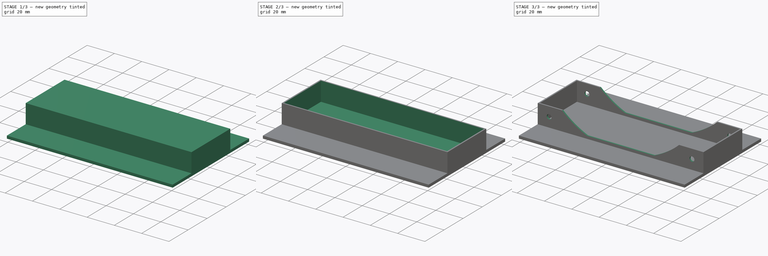
[diagram: build sequence overview — one tinted view per stage of 3, left to right]
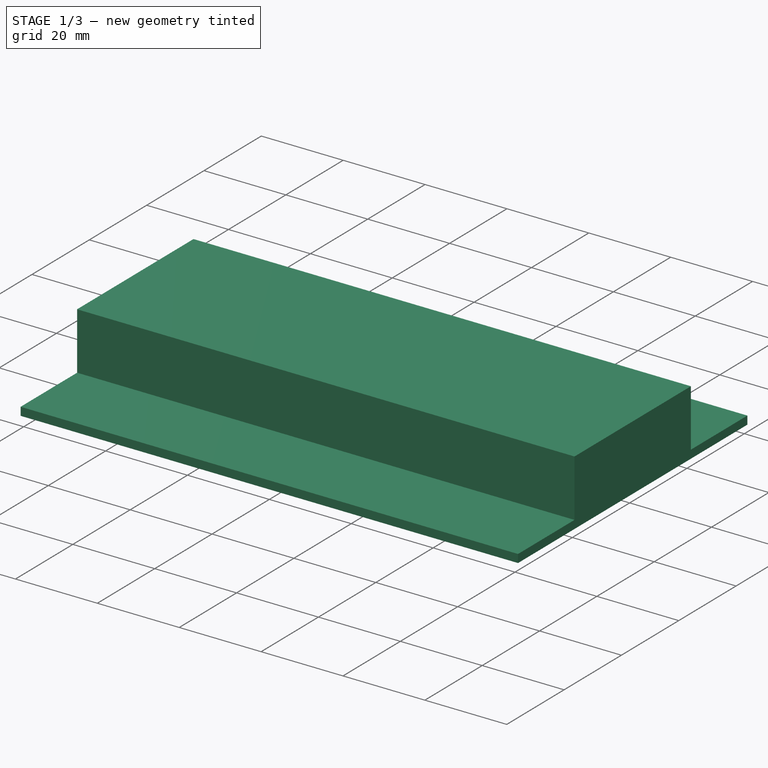
[diagram: stage 1 of 3 — iso view after this stage's code; geometry added in this stage tinted green]
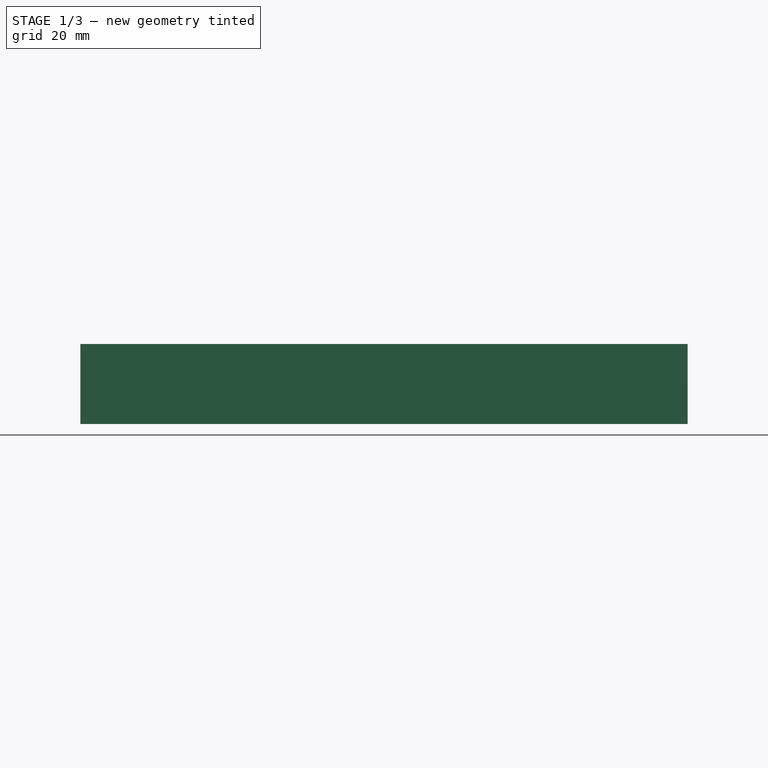
[diagram: stage 1 of 3 — front view after this stage's code; geometry added in this stage tinted green]
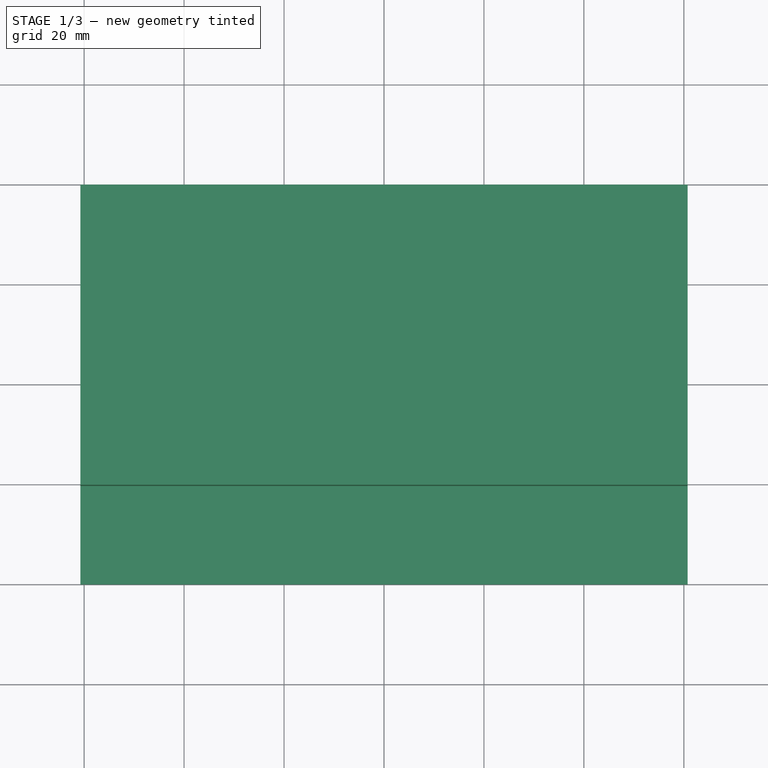
[diagram: stage 1 of 3 — top view after this stage's code; geometry added in this stage tinted green]
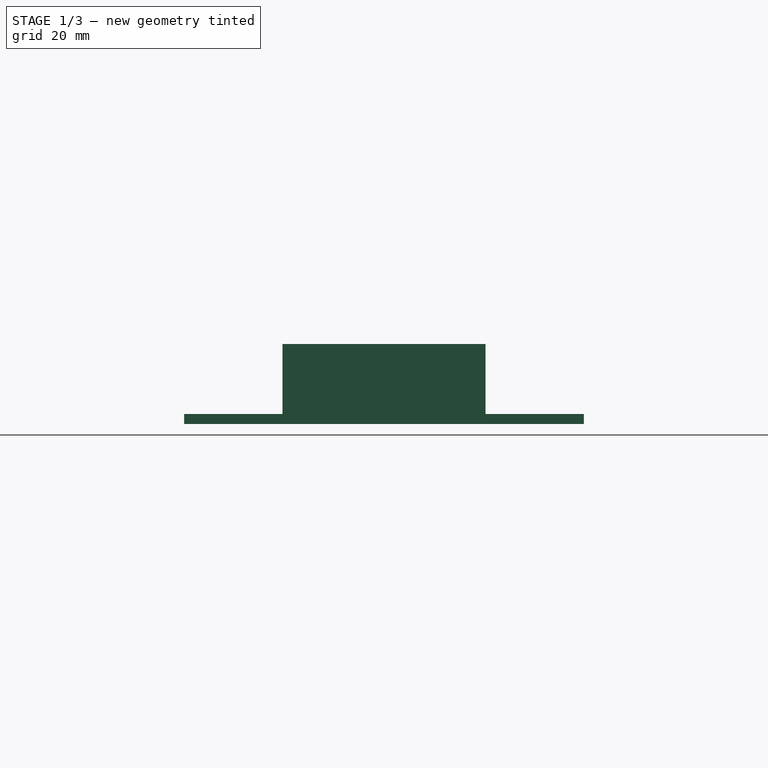
[diagram: stage 1 of 3 — right view after this stage's code; geometry added in this stage tinted green]
FCSTD DOCUMENT  (FreeCAD 0.21R33771 (Git))
Label: case-fan-desk-fan-base
License: All rights reserved
LicenseURL: https://en.wikipedia.org/wiki/All_rights_reserved
objects: Sketcher::SketchObject×5, PartDesign::Plane×4, PartDesign::Pocket×3, PartDesign::Pad×2, PartDesign::Body×1
note: 20 computed .brp shape members not serialized (recipe doc carries the construction recipe); baked Part::Feature solids carry a one-line shape summary decoded from their .brp

FEATURE [PartDesign::Plane] DatumPlane  label="Bottom Face"
  Length = 141.218
  MapMode = 5
  ResizeMode = 0
  Support = -> [XY_Plane]
  Width = 99.718
FEATURE [PartDesign::Plane] DatumPlane001  label="Support Top Face"
  AttachmentOffset = pos=(0,0,2) rot=(0,0,1;0rad)
  Length = 141.218
  MapMode = 5
  Placement = pos=(0,0,2) rot=(0,0,1;0rad)
  ResizeMode = 0
  Support = -> [DatumPlane]
  Width = 99.718
FEATURE [PartDesign::Plane] DatumPlane002  label="Fan Mount Top"
  AttachmentOffset = pos=(0,0,14) rot=(0,0,1;0rad)
  Length = 141.218
  MapMode = 5
  Placement = pos=(0,0,16) rot=(0,0,1;0rad)
  ResizeMode = 0
  Support = -> [DatumPlane001]
  Width = 99.718
FEATURE [Sketcher::SketchObject] Sketch  label="Bottom Outer"
  FullyConstrained = true
  MapMode = 5
  Support = -> [DatumPlane]
  expr: .Constraints.width = <<Fan Recess Outer>>.Constraints.width + 2 mm
  sketch-geometry (5):
    g0: LineSegment StartX=-60.75 StartY=40 StartZ=0 EndX=-60.75 EndY=-40 EndZ=0
    g1: LineSegment StartX=-60.75 StartY=-40 StartZ=0 EndX=60.75 EndY=-40 EndZ=0
    g2: LineSegment StartX=60.75 StartY=-40 StartZ=0 EndX=60.75 EndY=40 EndZ=0
    g3: LineSegment StartX=60.75 StartY=40 StartZ=0 EndX=-60.75 EndY=40 EndZ=0
    g4: GeomPoint X=0 Y=0 Z=0
  constraints (12):
    c: Coincident(g0,g1)
    c: Coincident(g1,g2)
    c: Coincident(g2,g3)
    c: Coincident(g3,g0)
    c: Horizontal(g1)
    c: Horizontal(g3)
    c: Vertical(g0)
    c: Vertical(g2)
    c: Symmetric(g1,g0,g4)
    c: Coincident(g4,g-1)
    c: DistanceX(g3,g3) = 121.5  'width'
    c: DistanceY(g2,g2) = 80  'depth'
FEATURE [PartDesign::Pad] Pad  label="Bottom"
  Direction = (0,0,1)
  Length = 10
  Length2 = 10
  Profile = -> Sketch
  ReferenceAxis = -> Sketch [N_Axis]
  Type = 3
  UpToFace = -> DatumPlane001 [Plane]
FEATURE [Sketcher::SketchObject] Sketch001  label="Fan Mount Outer"
  FullyConstrained = true
  MapMode = 5
  Placement = pos=(0,0,2) rot=(0,0,1;0rad)
  Support = -> [DatumPlane001]
  expr: .Constraints.depth = <<Fan Recess Outer>>.Constraints.depth + 2 mm
  expr: .Constraints.width = <<Bottom Outer>>.Constraints.width
  sketch-geometry (5):
    g0: LineSegment StartX=-60.75 StartY=20.3 StartZ=0 EndX=-60.75 EndY=-20.3 EndZ=0
    g1: LineSegment StartX=-60.75 StartY=-20.3 StartZ=0 EndX=60.75 EndY=-20.3 EndZ=0
    g2: LineSegment StartX=60.75 StartY=-20.3 StartZ=0 EndX=60.75 EndY=20.3 EndZ=0
    g3: LineSegment StartX=60.75 StartY=20.3 StartZ=0 EndX=-60.75 EndY=20.3 EndZ=0
    g4: GeomPoint X=0 Y=0 Z=0
  constraints (12):
    c: Coincident(g0,g1)
    c: Coincident(g1,g2)
    c: Coincident(g2,g3)
    c: Coincident(g3,g0)
    c: Horizontal(g1)
    c: Horizontal(g3)
    c: Vertical(g0)
    c: Vertical(g2)
    c: Symmetric(g1,g0,g4)
    c: Coincident(g4,g-1)
    c: DistanceX(g3,g3) = 121.5  'width'
    c: DistanceY(g2,g2) = 40.6  'depth'
FEATURE [PartDesign::Pad] Pad001  label="Fan Mount"
  BaseFeature = -> Pad
  Direction = (0,0,1)
  Length = 10
  Length2 = 10
  Profile = -> Sketch001
  ReferenceAxis = -> Sketch001 [N_Axis]
  Type = 3
  UpToFace = -> DatumPlane002 [Plane]
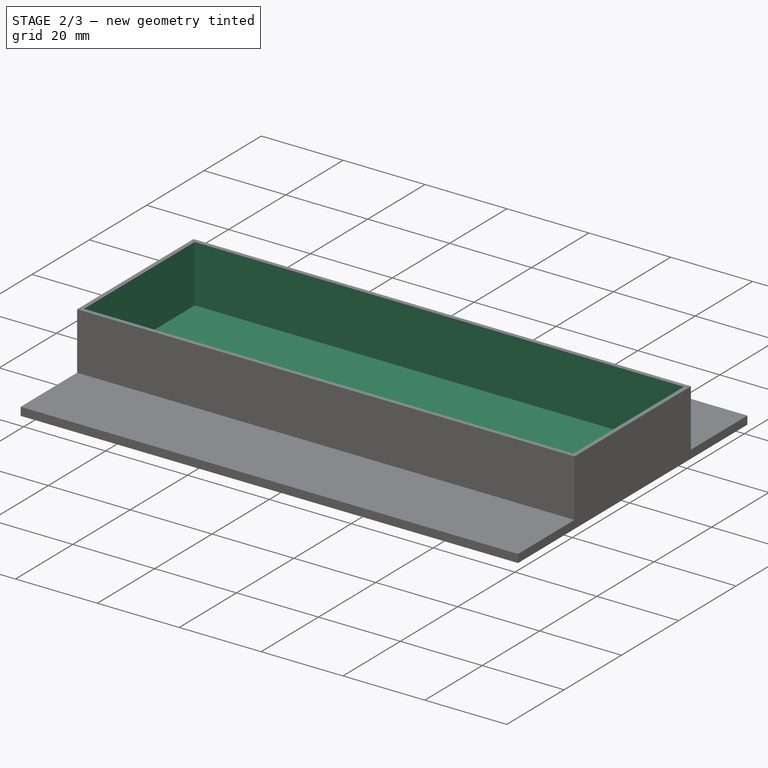
[diagram: stage 2 of 3 — iso view after this stage's code; geometry added in this stage tinted green]
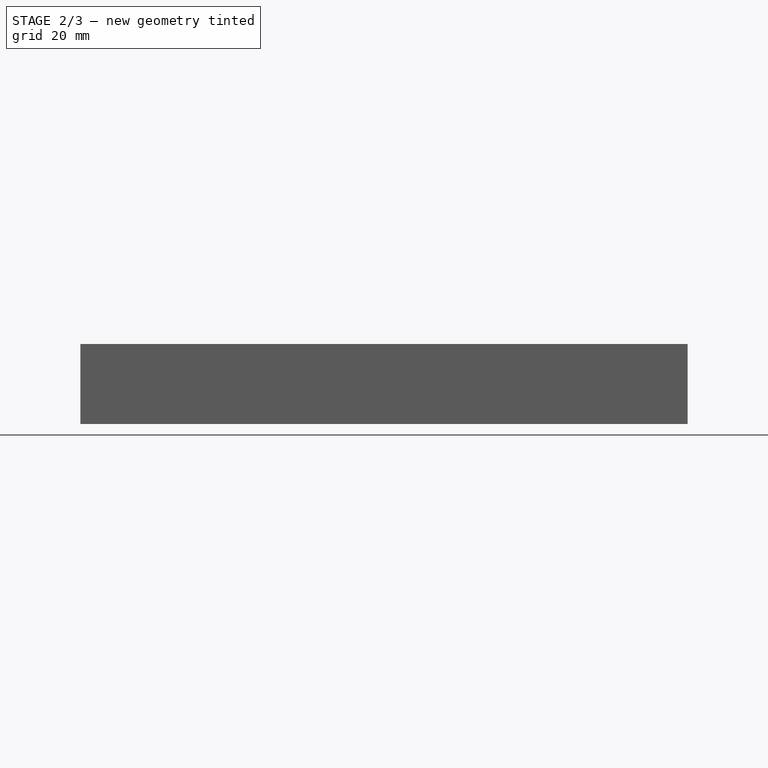
[diagram: stage 2 of 3 — front view after this stage's code; geometry added in this stage tinted green]
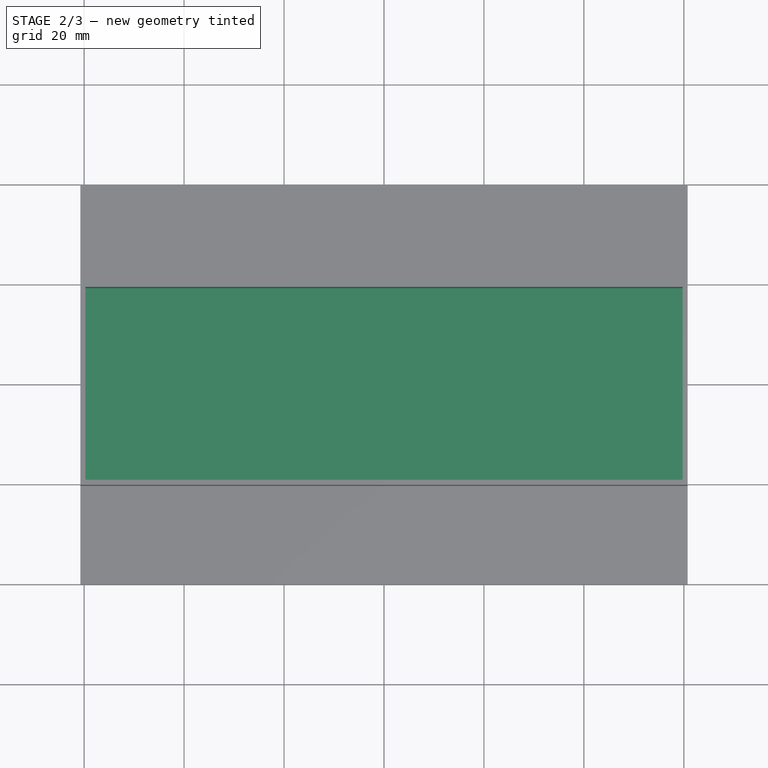
[diagram: stage 2 of 3 — top view after this stage's code; geometry added in this stage tinted green]
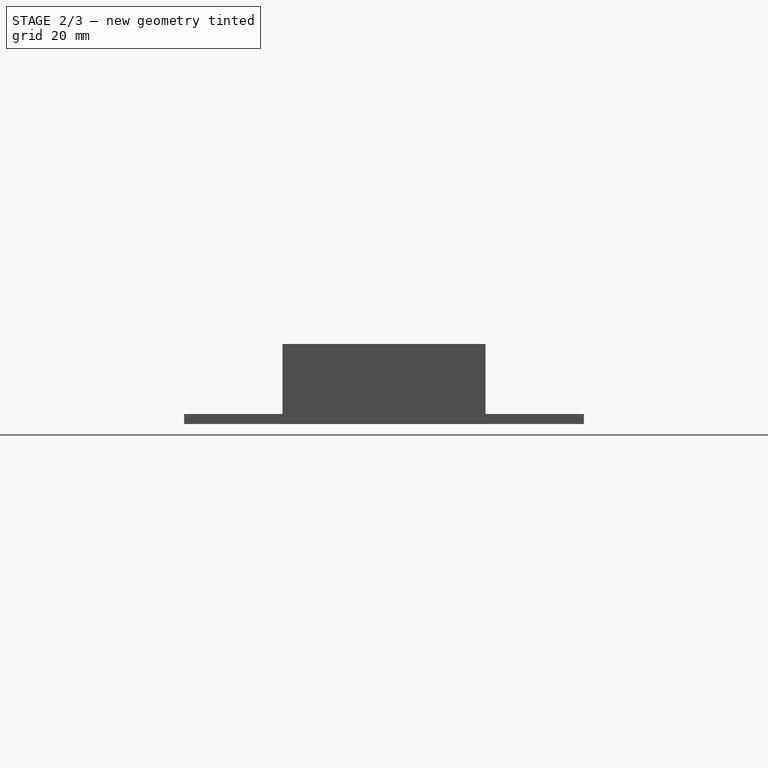
[diagram: stage 2 of 3 — right view after this stage's code; geometry added in this stage tinted green]
FEATURE [Sketcher::SketchObject] Sketch002  label="Fan Recess Outer"
  FullyConstrained = true
  MapMode = 5
  Placement = pos=(0,0,16) rot=(0,0,1;0rad)
  Support = -> [DatumPlane002]
  sketch-geometry (5):
    g0: LineSegment StartX=-59.75 StartY=19.3 StartZ=0 EndX=-59.75 EndY=-19.3 EndZ=0
    g1: LineSegment StartX=-59.75 StartY=-19.3 StartZ=0 EndX=59.75 EndY=-19.3 EndZ=0
    g2: LineSegment StartX=59.75 StartY=-19.3 StartZ=0 EndX=59.75 EndY=19.3 EndZ=0
    g3: LineSegment StartX=59.75 StartY=19.3 StartZ=0 EndX=-59.75 EndY=19.3 EndZ=0
    g4: GeomPoint X=0 Y=0 Z=0
  constraints (12):
    c: Coincident(g0,g1)
    c: Coincident(g1,g2)
    c: Coincident(g2,g3)
    c: Coincident(g3,g0)
    c: Horizontal(g1)
    c: Horizontal(g3)
    c: Vertical(g0)
    c: Vertical(g2)
    c: Symmetric(g1,g0,g4)
    c: Coincident(g4,g-1)
    c: DistanceX(g3,g3) = 119.5  'width'
    c: DistanceY(g2,g2) = 38.6  'depth'
FEATURE [PartDesign::Pocket] Pocket  label="Fan Recess"
  BaseFeature = -> Pad001
  Direction = (0,0,-1)
  Length = 0
  Length2 = 5
  Profile = -> Sketch002
  ReferenceAxis = -> Sketch002 [N_Axis]
  Type = 3
  UpToFace = -> DatumPlane001
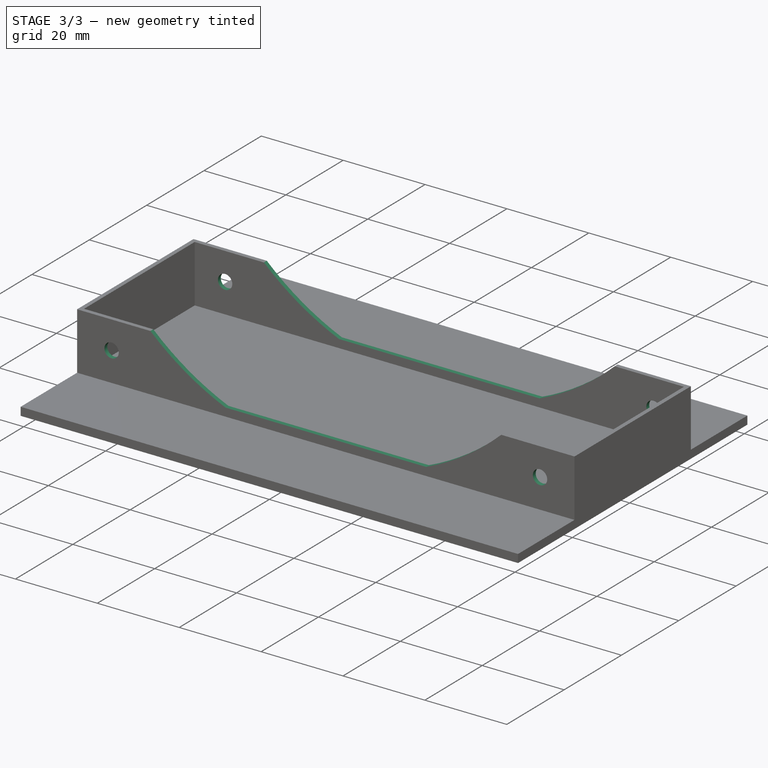
[diagram: stage 3 of 3 — iso view after this stage's code; geometry added in this stage tinted green]
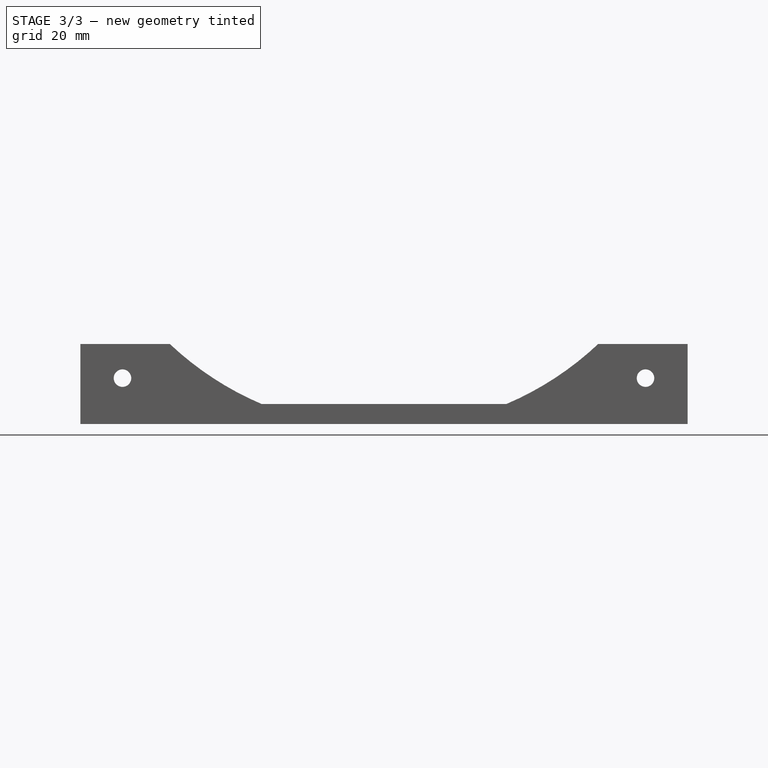
[diagram: stage 3 of 3 — front view after this stage's code; geometry added in this stage tinted green]
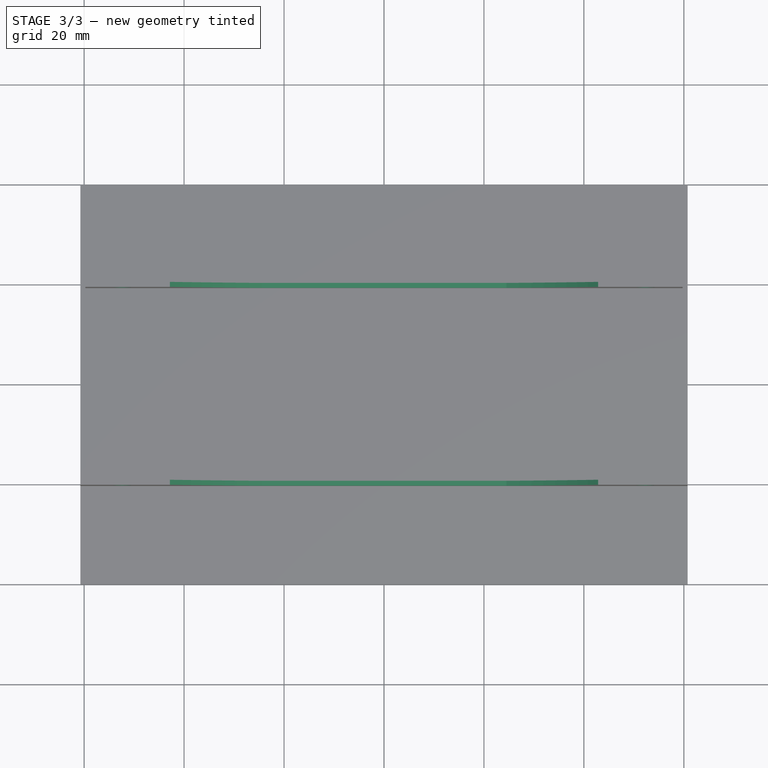
[diagram: stage 3 of 3 — top view after this stage's code; geometry added in this stage tinted green]
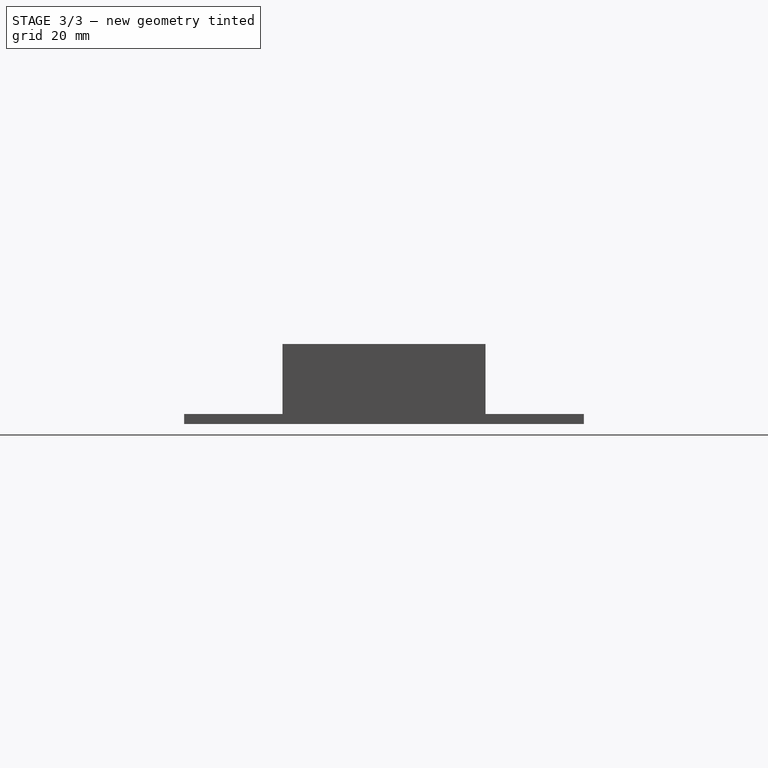
[diagram: stage 3 of 3 — right view after this stage's code; geometry added in this stage tinted green]
FEATURE [PartDesign::Plane] DatumPlane003  label="Fan Forward Centre Position"
  AttachmentOffset = pos=(0,61.5,0) rot=(0,0,1;0rad)
  Length = 142.003
  MapMode = 5
  Placement = pos=(0,-1.37e-14,61.5) rot=(1,0,0;1.5708rad)
  ResizeMode = 0
  Support = -> [XZ_Plane]
  Width = 107.003
  expr: .AttachmentOffset.Base.y = 115 mm / 2 + <<Support Top Face>>.Placement.Base.z + 2 mm
FEATURE [Sketcher::SketchObject] Sketch003  label="Fan Airflow Opening Outer"
  FullyConstrained = true
  MapMode = 5
  Placement = pos=(0,-1.37e-14,61.5) rot=(1,0,0;1.5708rad)
  Support = -> [DatumPlane003]
  sketch-geometry (4):
    g0: Circle CenterX=0 CenterY=0 CenterZ=0 NormalX=0 NormalY=0 NormalZ=1 AngleXU=0 Radius=62.5
    g1: Circle CenterX=0 CenterY=0 CenterZ=0 NormalX=0 NormalY=0 NormalZ=1 AngleXU=0 Radius=57.5
    g2: LineSegment StartX=-24.4949 StartY=-57.5 StartZ=0 EndX=24.4949 EndY=-57.5 EndZ=0
    g3: ArcOfCircle CenterX=0 CenterY=0 CenterZ=0 NormalX=0 NormalY=0 NormalZ=1 AngleXU=0 Radius=62.5 StartAngle=5.1151 EndAngle=10.5929
  constraints (10):
    c: Coincident(g0,g-1)
    c: Diameter(g0) = 125
    c: Coincident(g1,g0)
    c: Diameter(g1) = 115
    c: PointOnObject(g2,g0)
    c: Horizontal(g2)
    c: Coincident(g3,g0)
    c: Coincident(g3,g2)
    c: Coincident(g3,g2)
    c: Tangent(g2,g1)
FEATURE [PartDesign::Pocket] Pocket001  label="Fan Airflow Opening"
  BaseFeature = -> Pocket
  Direction = (0,1,2e-16)
  Length = 5
  Length2 = 5
  Midplane = true
  Profile = -> Sketch003
  ReferenceAxis = -> Sketch003 [N_Axis]
  Type = 1
FEATURE [Sketcher::SketchObject] Sketch004  label="Fan Mounting Holes Outer"
  FullyConstrained = true
  MapMode = 5
  Placement = pos=(0,-1.37e-14,61.5) rot=(1,0,0;1.5708rad)
  Support = -> [DatumPlane003]
  sketch-geometry (5):
    g0: Circle CenterX=0 CenterY=0 CenterZ=0 NormalX=0 NormalY=0 NormalZ=1 AngleXU=0 Radius=74
    g1: LineSegment StartX=0 StartY=0 StartZ=0 EndX=-52.3259 EndY=-52.3259 EndZ=0
    g2: LineSegment StartX=0 StartY=0 StartZ=0 EndX=52.3259 EndY=-52.3259 EndZ=0
    g3: Circle CenterX=-52.3259 CenterY=-52.3259 CenterZ=0 NormalX=0 NormalY=0 NormalZ=1 AngleXU=0 Radius=1.75
    g4: Circle CenterX=52.3259 CenterY=-52.3259 CenterZ=0 NormalX=0 NormalY=0 NormalZ=1 AngleXU=0 Radius=1.75
  constraints (12):
    c: Coincident(g0,g-1)
    c: Coincident(g1,g0)
    c: PointOnObject(g1,g0)
    c: Coincident(g2,g0)
    c: PointOnObject(g2,g0)
    c: Angle(g-2,g1) = 2.35619
    c: Angle(g2,g-2) = 2.35619
    c: Diameter(g0) = 148
    c: Coincident(g3,g1)
    c: Coincident(g4,g2)
    c: Equal(g3,g4)
    c: Diameter(g4) = 3.5  'hole_diameter'
FEATURE [PartDesign::Pocket] Pocket002  label="Fan Mounting Holes"
  BaseFeature = -> Pocket001
  Direction = (0,1,2e-16)
  Length = 5
  Length2 = 5
  Midplane = true
  Profile = -> Sketch004
  ReferenceAxis = -> Sketch004 [N_Axis]
  Type = 1
FEATURE [PartDesign::Body] Body
  Group = -> [DatumPlane,DatumPlane001,DatumPlane002,Sketch,Pad,Sketch001,Pad001,Sketch002,Pocket,DatumPlane003,Sketch003,Pocket001,Sketch004,Pocket002]
  Origin = -> Origin
  Tip = -> Pocket002
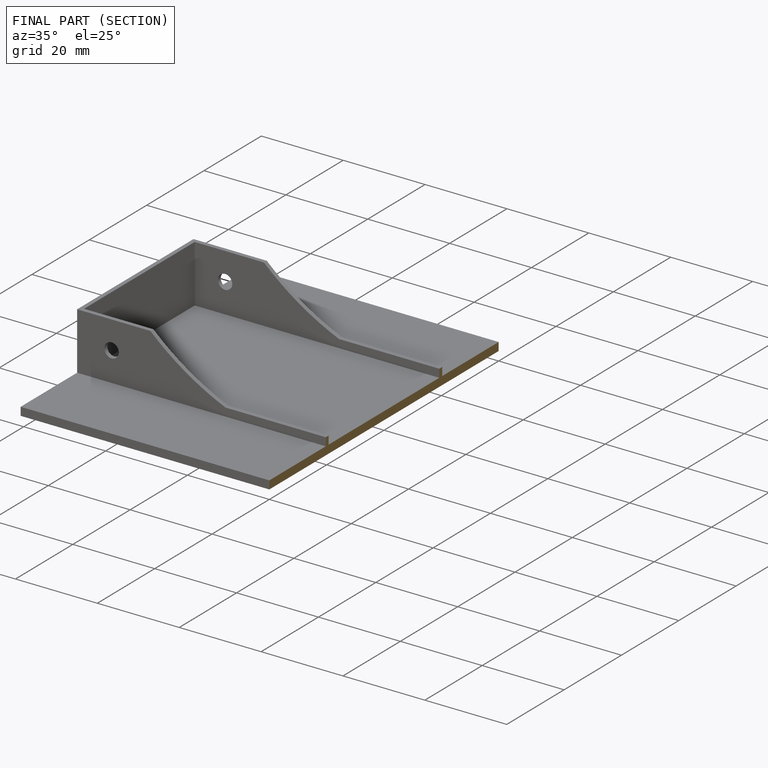
[diagram: finished part — half-section view (interior)]
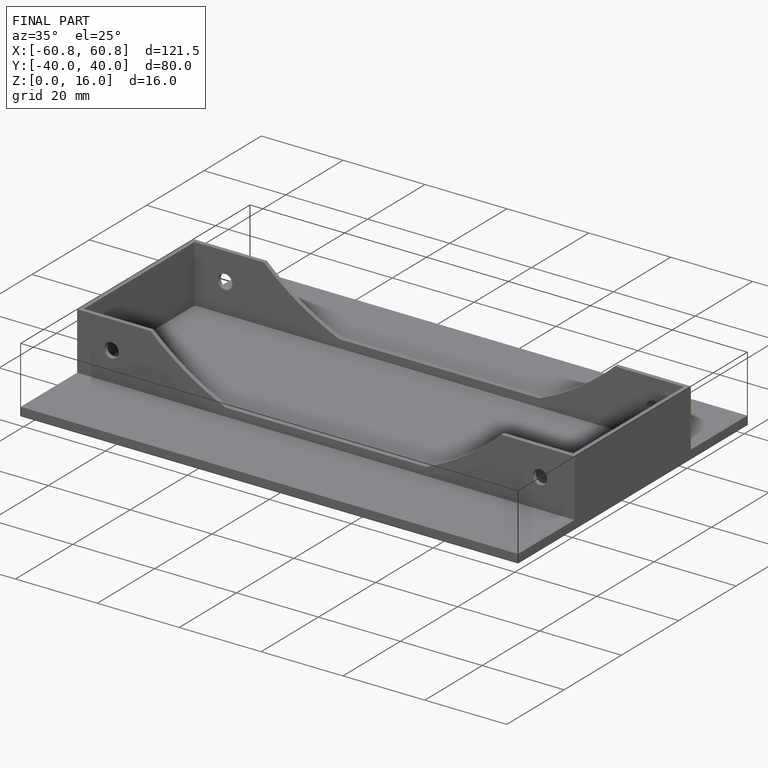
[diagram: finished part — iso view with bounding-box wireframe]
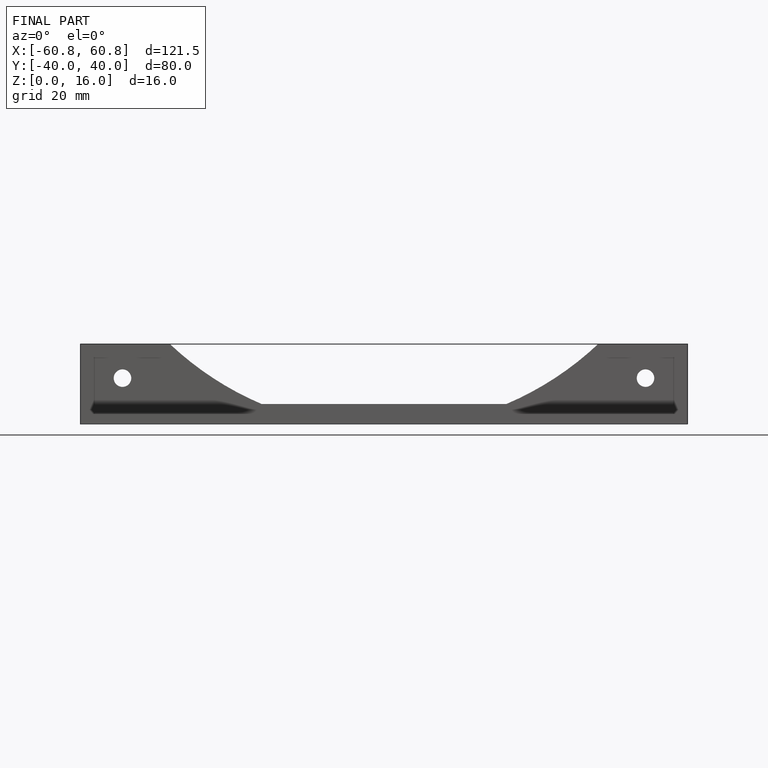
[diagram: finished part — front view with bounding-box wireframe]
